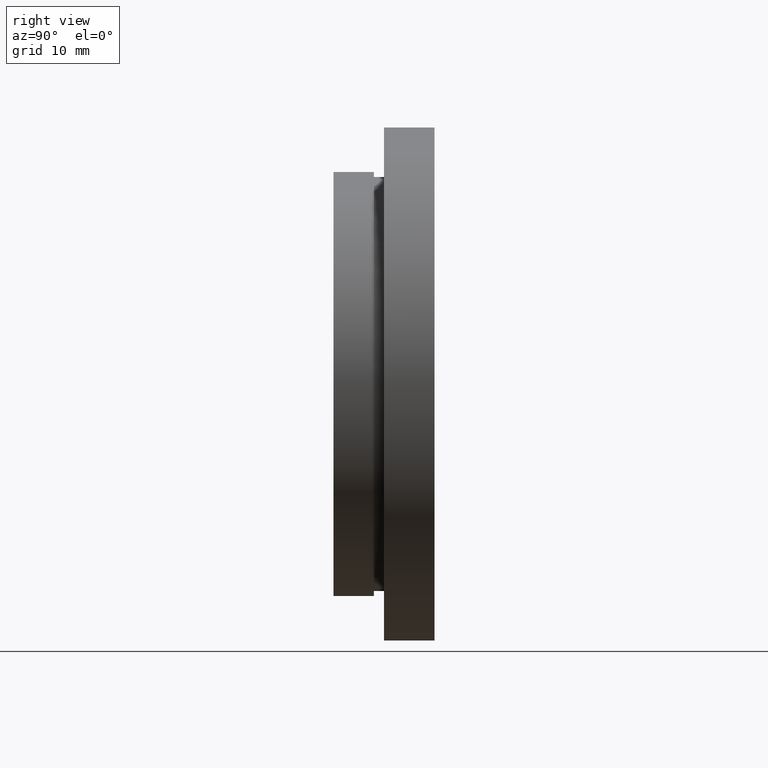
[diagram: clean part render]
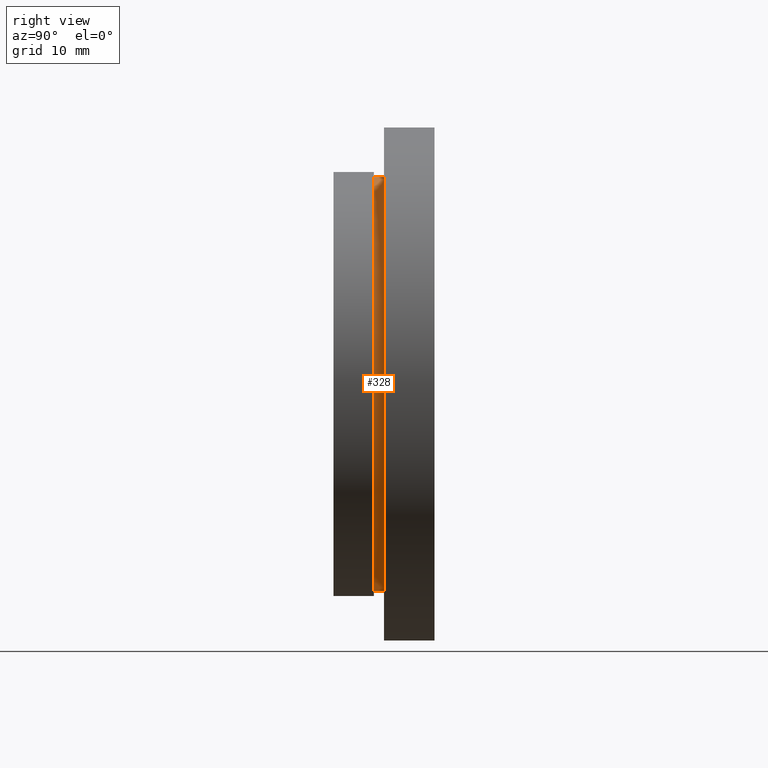
[diagram: same view with one face highlighted and labeled with its STEP entity id]
A machine part, right view. The second image highlights one B-rep face of the part: STEP entity #328.
In plain terms, the highlighted cylindrical surface (partial cylindrical patch) has radius 20.5 mm, axis along (-0, 1, -0).
Its self-contained STEP definition (entity closure, byte-faithful):
#4 = CARTESIAN_POINT ( 'NONE',  ( 2.510525938252074500E-015, 17.41929831819392000, -20.50000000000000000 ) ) ;
#40 = VERTEX_POINT ( 'NONE', #187 ) ;
#49 = DIRECTION ( 'NONE',  ( -0.0000000000000000000, 1.000000000000000000, -0.0000000000000000000 ) ) ;
#70 = CARTESIAN_POINT ( 'NONE',  ( 0.0000000000000000000, 4.000000000000000000, 0.0000000000000000000 ) ) ;
#77 = CARTESIAN_POINT ( 'NONE',  ( 0.0000000000000000000, 17.41929831819392000, 0.0000000000000000000 ) ) ;
#83 = DIRECTION ( 'NONE',  ( 0.0000000000000000000, 0.0000000000000000000, 1.000000000000000000 ) ) ;
#96 = CARTESIAN_POINT ( 'NONE',  ( 0.0000000000000000000, 17.41929831819392000, 20.50000000000000000 ) ) ;
#106 = DIRECTION ( 'NONE',  ( 0.0000000000000000000, 0.0000000000000000000, 1.000000000000000000 ) ) ;
#128 = ORIENTED_EDGE ( 'NONE', *, *, #223, .T. ) ;
#134 = DIRECTION ( 'NONE',  ( -0.0000000000000000000, 1.000000000000000000, -0.0000000000000000000 ) ) ;
#138 = VERTEX_POINT ( 'NONE', #522 ) ;
#155 = ORIENTED_EDGE ( 'NONE', *, *, #212, .T. ) ;
#167 = AXIS2_PLACEMENT_3D ( 'NONE', #77, #49, #83 ) ;
#186 = CIRCLE ( 'NONE', #439, 20.50000000000000000 ) ;
#187 = CARTESIAN_POINT ( 'NONE',  ( 2.510525938252074500E-015, 5.000000000000000900, -20.50000000000000000 ) ) ;
#212 = EDGE_CURVE ( 'NONE', #138, #40, #379, .T. ) ;
#223 = EDGE_CURVE ( 'NONE', #420, #138, #186, .T. ) ;
#238 = ORIENTED_EDGE ( 'NONE', *, *, #594, .F. ) ;
#242 = CIRCLE ( 'NONE', #531, 20.50000000000000000 ) ;
#260 = LINE ( 'NONE', #96, #406 ) ;
#276 = EDGE_CURVE ( 'NONE', #420, #401, #260, .T. ) ;
#280 = ORIENTED_EDGE ( 'NONE', *, *, #276, .F. ) ;
#317 = CARTESIAN_POINT ( 'NONE',  ( 0.0000000000000000000, 5.000000000000000900, 0.0000000000000000000 ) ) ;
#319 = VECTOR ( 'NONE', #430, 1000.000000000000000 ) ;
#322 = DIRECTION ( 'NONE',  ( 0.0000000000000000000, 0.0000000000000000000, 1.000000000000000000 ) ) ;
#328 = ADVANCED_FACE ( 'NONE', ( #448 ), #479, .T. ) ;
#379 = LINE ( 'NONE', #4, #319 ) ;
#401 = VERTEX_POINT ( 'NONE', #475 ) ;
#406 = VECTOR ( 'NONE', #134, 1000.000000000000000 ) ;
#408 = DIRECTION ( 'NONE',  ( -0.0000000000000000000, 1.000000000000000000, -0.0000000000000000000 ) ) ;
#420 = VERTEX_POINT ( 'NONE', #453 ) ;
#430 = DIRECTION ( 'NONE',  ( -0.0000000000000000000, 1.000000000000000000, -0.0000000000000000000 ) ) ;
#439 = AXIS2_PLACEMENT_3D ( 'NONE', #70, #497, #106 ) ;
#448 = FACE_OUTER_BOUND ( 'NONE', #486, .T. ) ;
#453 = CARTESIAN_POINT ( 'NONE',  ( 0.0000000000000000000, 4.000000000000000000, 20.50000000000000000 ) ) ;
#475 = CARTESIAN_POINT ( 'NONE',  ( 0.0000000000000000000, 5.000000000000000900, 20.50000000000000000 ) ) ;
#479 = CYLINDRICAL_SURFACE ( 'NONE', #167, 20.50000000000000000 ) ;
#486 = EDGE_LOOP ( 'NONE', ( #128, #155, #238, #280 ) ) ;
#497 = DIRECTION ( 'NONE',  ( -0.0000000000000000000, 1.000000000000000000, -0.0000000000000000000 ) ) ;
#522 = CARTESIAN_POINT ( 'NONE',  ( 2.510525938252074500E-015, 4.000000000000000000, -20.50000000000000000 ) ) ;
#531 = AXIS2_PLACEMENT_3D ( 'NONE', #317, #408, #322 ) ;
#594 = EDGE_CURVE ( 'NONE', #401, #40, #242, .T. ) ;